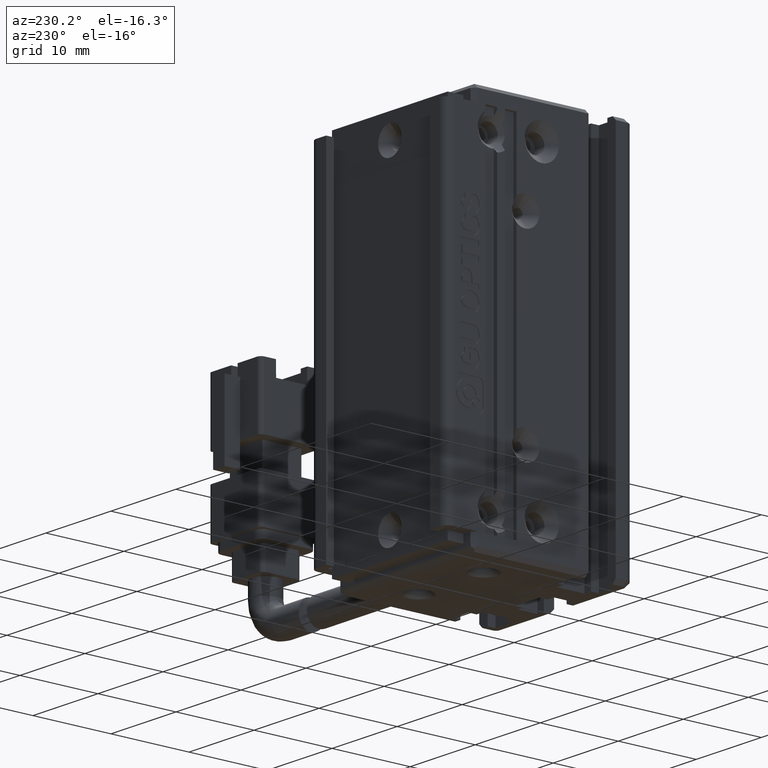
[diagram: clean part render]
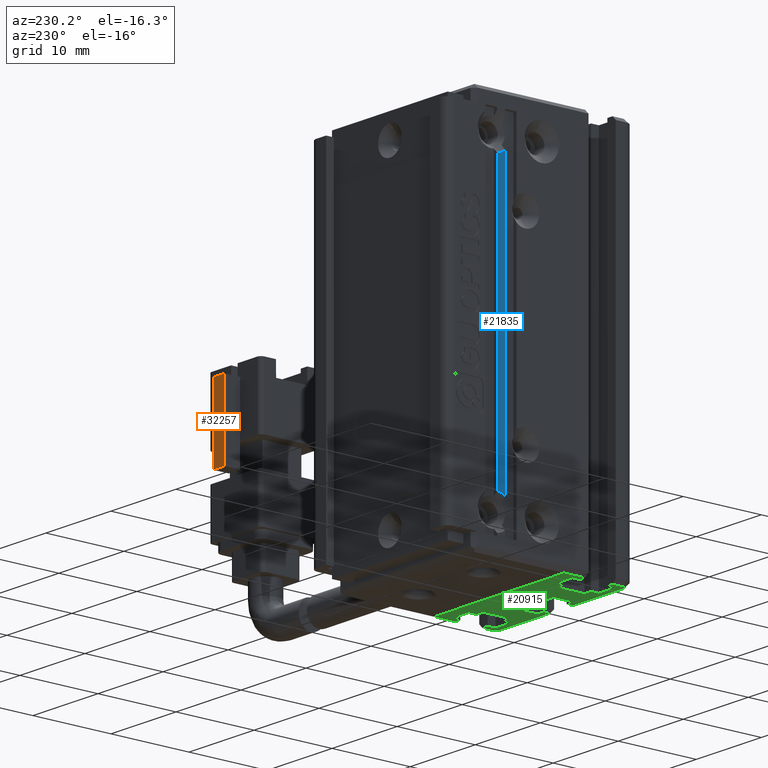
[diagram: same view with three faces highlighted in distinct colors, each labeled with its STEP entity id]
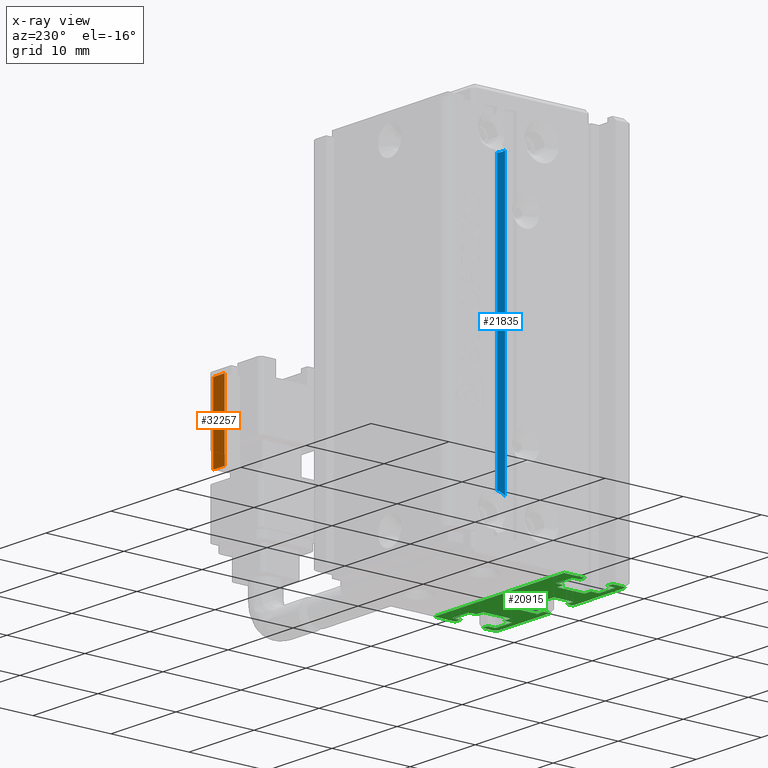
[diagram: x-ray of the same camera — body ghosted, the three highlighted faces saturated]
A machine part, auxiliary view with three faces highlighted in distinct colors.
The next image is the same camera in x-ray (body ghosted, the three faces saturated) — at least one of them is partly hidden behind the body in this view.
Their STEP definitions:

[orange] entity #32257 — the highlighted planar face has unit normal (0, -1, 0).
#828 = DIRECTION ( 'NONE',  ( -1.000000000000000000, -3.304235192336770000E-015, -8.579261317967046800E-031 ) ) ;
#1065 = PLANE ( 'NONE',  #9312 ) ;
#1249 = EDGE_CURVE ( 'NONE', #16711, #12448, #35735, .T. ) ;
#1794 = ORIENTED_EDGE ( 'NONE', *, *, #1249, .T. ) ;
#3335 = LINE ( 'NONE', #10336, #17324 ) ;
#3916 = DIRECTION ( 'NONE',  ( 3.304235192336770000E-015, -1.000000000000000000, 2.381136223867111700E-016 ) ) ;
#5257 = CARTESIAN_POINT ( 'NONE',  ( 73.55037974683534700, 27.49073232304858600, -119.9500000000000000 ) ) ;
#6436 = FACE_OUTER_BOUND ( 'NONE', #24013, .T. ) ;
#8269 = DIRECTION ( 'NONE',  ( 1.041348031262155300E-030, -5.551115123125780200E-017, -1.000000000000000000 ) ) ;
#9312 = AXIS2_PLACEMENT_3D ( 'NONE', #12774, #3916, #16016 ) ;
#10336 = CARTESIAN_POINT ( 'NONE',  ( 73.55037974683534700, 27.49073232304858600, -110.4500000000000000 ) ) ;
#10622 = CARTESIAN_POINT ( 'NONE',  ( 73.55037974683534700, 27.49073232304858600, -110.4500000000000000 ) ) ;
#12317 = VECTOR ( 'NONE', #828, 1000.000000000000000 ) ;
#12448 = VERTEX_POINT ( 'NONE', #31370 ) ;
#12774 = CARTESIAN_POINT ( 'NONE',  ( 73.55037974683534700, 27.49073232304858600, -110.4500000000000000 ) ) ;
#13887 = ORIENTED_EDGE ( 'NONE', *, *, #29961, .F. ) ;
#15738 = VERTEX_POINT ( 'NONE', #10622 ) ;
#15973 = ORIENTED_EDGE ( 'NONE', *, *, #17709, .F. ) ;
#16016 = DIRECTION ( 'NONE',  ( -1.644709542661664400E-030, 2.381136223867111700E-016, 1.000000000000000000 ) ) ;
#16711 = VERTEX_POINT ( 'NONE', #27559 ) ;
#17324 = VECTOR ( 'NONE', #22243, 1000.000000000000000 ) ;
#17522 = DIRECTION ( 'NONE',  ( -1.000000000000000000, -3.304235192336770000E-015, -8.579261317967046800E-031 ) ) ;
#17709 = EDGE_CURVE ( 'NONE', #16711, #15738, #20290, .T. ) ;
#18643 = VECTOR ( 'NONE', #17522, 1000.000000000000000 ) ;
#20290 = LINE ( 'NONE', #28194, #12317 ) ;
#22243 = DIRECTION ( 'NONE',  ( 1.041348031262155300E-030, -5.551115123125780200E-017, -1.000000000000000000 ) ) ;
#24013 = EDGE_LOOP ( 'NONE', ( #25532, #13887, #15973, #1794 ) ) ;
#24678 = EDGE_CURVE ( 'NONE', #12448, #25483, #26605, .T. ) ;
#25483 = VERTEX_POINT ( 'NONE', #28174 ) ;
#25532 = ORIENTED_EDGE ( 'NONE', *, *, #24678, .T. ) ;
#26605 = LINE ( 'NONE', #5257, #18643 ) ;
#27559 = CARTESIAN_POINT ( 'NONE',  ( 75.30037974683534700, 27.49073232304859000, -110.4500000000000000 ) ) ;
#27738 = VECTOR ( 'NONE', #8269, 1000.000000000000000 ) ;
#28174 = CARTESIAN_POINT ( 'NONE',  ( 73.55037974683534700, 27.49073232304858600, -119.9500000000000000 ) ) ;
#28194 = CARTESIAN_POINT ( 'NONE',  ( 73.55037974683534700, 27.49073232304858600, -110.4500000000000000 ) ) ;
#29079 = CARTESIAN_POINT ( 'NONE',  ( 75.30037974683534700, 27.49073232304859000, -110.4500000000000000 ) ) ;
#29961 = EDGE_CURVE ( 'NONE', #15738, #25483, #3335, .T. ) ;
#31370 = CARTESIAN_POINT ( 'NONE',  ( 75.30037974683534700, 27.49073232304859000, -119.9500000000000000 ) ) ;
#32257 = ADVANCED_FACE ( 'NONE', ( #6436 ), #1065, .F. ) ;
#35735 = LINE ( 'NONE', #29079, #27738 ) ;

[blue] entity #21835 — the highlighted planar face has unit normal (-1, 0, 0).
#83 = DIRECTION ( 'NONE',  ( 0.0000000000000000000, 3.154042683580097500E-015, 1.000000000000000000 ) ) ;
#1394 = CARTESIAN_POINT ( 'NONE',  ( 30.42537974683542100, 7.083797468354437600, -91.00000000000000000 ) ) ;
#1775 = DIRECTION ( 'NONE',  ( 0.0000000000000000000, 0.0000000000000000000, 1.000000000000000000 ) ) ;
#3462 = EDGE_CURVE ( 'NONE', #8829, #8794, #18912, .T. ) ;
#4968 = EDGE_CURVE ( 'NONE', #8794, #15138, #26114, .T. ) ;
#8430 = EDGE_CURVE ( 'NONE', #37164, #8829, #27811, .T. ) ;
#8794 = VERTEX_POINT ( 'NONE', #33349 ) ;
#8829 = VERTEX_POINT ( 'NONE', #15272 ) ;
#11407 = ORIENTED_EDGE ( 'NONE', *, *, #8430, .T. ) ;
#13464 = CIRCLE ( 'NONE', #37040, 2.200000000022572800 ) ;
#13498 = DIRECTION ( 'NONE',  ( -1.000000000000000000, 0.0000000000000000000, 0.0000000000000000000 ) ) ;
#13850 = AXIS2_PLACEMENT_3D ( 'NONE', #32718, #18048, #83 ) ;
#14972 = DIRECTION ( 'NONE',  ( 1.000000000000000000, -0.0000000000000000000, -0.0000000000000000000 ) ) ;
#15138 = VERTEX_POINT ( 'NONE', #21763 ) ;
#15272 = CARTESIAN_POINT ( 'NONE',  ( 30.42537974685563600, 27.49073232304837300, -97.27482393494297200 ) ) ;
#16836 = DIRECTION ( 'NONE',  ( 0.0000000000000000000, -0.0000000000000000000, -1.000000000000000000 ) ) ;
#18048 = DIRECTION ( 'NONE',  ( 1.000000000000000000, -0.0000000000000000000, -0.0000000000000000000 ) ) ;
#18912 = CIRCLE ( 'NONE', #13850, 2.200000000009833200 ) ;
#19145 = VECTOR ( 'NONE', #16836, 1000.000000000000000 ) ;
#19279 = PLANE ( 'NONE',  #34093 ) ;
#19865 = VECTOR ( 'NONE', #1775, 1000.000000000000000 ) ;
#21763 = CARTESIAN_POINT ( 'NONE',  ( 30.42537974685621900, 28.49073232304836600, -132.3205505282067500 ) ) ;
#21835 = ADVANCED_FACE ( 'NONE', ( #37790 ), #19279, .T. ) ;
#22604 = CARTESIAN_POINT ( 'NONE',  ( 30.42537974683542100, 28.49073232304836600, -91.00000000000000000 ) ) ;
#23977 = CARTESIAN_POINT ( 'NONE',  ( 30.42537974684588400, 27.49073232304837300, -132.7251760650292200 ) ) ;
#25224 = EDGE_CURVE ( 'NONE', #15138, #37164, #13464, .T. ) ;
#26114 = LINE ( 'NONE', #22604, #19145 ) ;
#27723 = ORIENTED_EDGE ( 'NONE', *, *, #3462, .T. ) ;
#27811 = LINE ( 'NONE', #34172, #19865 ) ;
#29162 = EDGE_LOOP ( 'NONE', ( #27723, #31428, #37746, #11407 ) ) ;
#31428 = ORIENTED_EDGE ( 'NONE', *, *, #4968, .T. ) ;
#32428 = CARTESIAN_POINT ( 'NONE',  ( 30.42537974685634300, 28.79073232304836700, -134.5000000000000000 ) ) ;
#32718 = CARTESIAN_POINT ( 'NONE',  ( 30.42537974685634300, 28.79073232304837000, -95.50000000000001400 ) ) ;
#33349 = CARTESIAN_POINT ( 'NONE',  ( 30.42537974684588400, 28.49073232304836600, -97.67944947179083200 ) ) ;
#34093 = AXIS2_PLACEMENT_3D ( 'NONE', #1394, #13498, #38174 ) ;
#34172 = CARTESIAN_POINT ( 'NONE',  ( 30.42537974683542100, 27.49073232304837300, -91.00000000000000000 ) ) ;
#35699 = DIRECTION ( 'NONE',  ( 0.0000000000000000000, -1.577021341780916500E-015, 1.000000000000000000 ) ) ;
#37040 = AXIS2_PLACEMENT_3D ( 'NONE', #32428, #14972, #35699 ) ;
#37164 = VERTEX_POINT ( 'NONE', #23977 ) ;
#37746 = ORIENTED_EDGE ( 'NONE', *, *, #25224, .T. ) ;
#37790 = FACE_OUTER_BOUND ( 'NONE', #29162, .T. ) ;
#38174 = DIRECTION ( 'NONE',  ( 0.0000000000000000000, 0.0000000000000000000, 1.000000000000000000 ) ) ;

[green] entity #20915 — the highlighted planar face has unit normal (-0, 0, 1).
#33 = CARTESIAN_POINT ( 'NONE',  ( 50.92537974683541800, 7.083797468354437600, -139.0000000000000000 ) ) ;
#153 = VECTOR ( 'NONE', #6653, 1000.000000000000000 ) ;
#384 = LINE ( 'NONE', #6993, #8709 ) ;
#411 = ORIENTED_EDGE ( 'NONE', *, *, #35120, .T. ) ;
#736 = ORIENTED_EDGE ( 'NONE', *, *, #32164, .T. ) ;
#856 = CARTESIAN_POINT ( 'NONE',  ( 31.72537974683539000, 7.083797468354469600, -139.0000000000000000 ) ) ;
#992 = VERTEX_POINT ( 'NONE', #21769 ) ;
#1178 = VERTEX_POINT ( 'NONE', #16347 ) ;
#1208 = EDGE_CURVE ( 'NONE', #9322, #22573, #17433, .T. ) ;
#1235 = CARTESIAN_POINT ( 'NONE',  ( 50.92537974683541800, 16.79073232304837000, -139.0000000000000000 ) ) ;
#1330 = CARTESIAN_POINT ( 'NONE',  ( 34.22537974683542900, 12.29073232304837200, -139.0000000000000000 ) ) ;
#1701 = EDGE_CURVE ( 'NONE', #12330, #38287, #1907, .T. ) ;
#1709 = DIRECTION ( 'NONE',  ( -1.000000000000000000, -0.0000000000000000000, -0.0000000000000000000 ) ) ;
#1728 = CARTESIAN_POINT ( 'NONE',  ( 40.92537974683542500, 13.29073232304837200, -139.0000000000000000 ) ) ;
#1907 = LINE ( 'NONE', #13123, #16829 ) ;
#2000 = ORIENTED_EDGE ( 'NONE', *, *, #15696, .T. ) ;
#2163 = EDGE_CURVE ( 'NONE', #14493, #5362, #36046, .T. ) ;
#2205 = VERTEX_POINT ( 'NONE', #18506 ) ;
#2322 = VERTEX_POINT ( 'NONE', #20516 ) ;
#2325 = CARTESIAN_POINT ( 'NONE',  ( 30.92537974683541800, 19.49073232304837000, -139.0000000000000000 ) ) ;
#2407 = EDGE_CURVE ( 'NONE', #37473, #6656, #17210, .T. ) ;
#2457 = CARTESIAN_POINT ( 'NONE',  ( 31.72537974683542600, 13.29073232304837200, -139.0000000000000000 ) ) ;
#2641 = DIRECTION ( 'NONE',  ( 1.000000000000000000, 0.0000000000000000000, 0.0000000000000000000 ) ) ;
#2711 = EDGE_CURVE ( 'NONE', #37631, #19708, #7340, .T. ) ;
#2860 = VECTOR ( 'NONE', #23421, 1000.000000000000000 ) ;
#2920 = VERTEX_POINT ( 'NONE', #38331 ) ;
#3140 = LINE ( 'NONE', #10501, #29801 ) ;
#3434 = CARTESIAN_POINT ( 'NONE',  ( 43.67537974683542500, 12.29073232304837200, -139.0000000000000000 ) ) ;
#3455 = VECTOR ( 'NONE', #19400, 1000.000000000000000 ) ;
#3484 = DIRECTION ( 'NONE',  ( 1.000000000000000000, 0.0000000000000000000, 0.0000000000000000000 ) ) ;
#3529 = ORIENTED_EDGE ( 'NONE', *, *, #31596, .F. ) ;
#3552 = DIRECTION ( 'NONE',  ( 1.000000000000000000, -2.602085213965209900E-015, 0.0000000000000000000 ) ) ;
#3648 = EDGE_CURVE ( 'NONE', #2322, #19419, #19365, .T. ) ;
#3691 = CARTESIAN_POINT ( 'NONE',  ( 46.62537974683541400, 7.083797468354437600, -139.0000000000000000 ) ) ;
#3759 = AXIS2_PLACEMENT_3D ( 'NONE', #11140, #35097, #29338 ) ;
#3820 = VERTEX_POINT ( 'NONE', #18727 ) ;
#3845 = CARTESIAN_POINT ( 'NONE',  ( 34.22537974683547200, 7.083797468354414500, -139.0000000000000000 ) ) ;
#3932 = LINE ( 'NONE', #856, #28686 ) ;
#3968 = CARTESIAN_POINT ( 'NONE',  ( 40.92537974683542500, 12.29073232304837200, -139.0000000000000000 ) ) ;
#4122 = ORIENTED_EDGE ( 'NONE', *, *, #17931, .F. ) ;
#4151 = DIRECTION ( 'NONE',  ( -0.0000000000000000000, -1.000000000000000000, 0.0000000000000000000 ) ) ;
#4461 = EDGE_CURVE ( 'NONE', #38287, #18095, #10752, .T. ) ;
#4499 = CARTESIAN_POINT ( 'NONE',  ( 47.62537974683541400, 13.29073232304837200, -139.0000000000000000 ) ) ;
#4600 = CARTESIAN_POINT ( 'NONE',  ( 47.62537974683543500, 7.083797468354461600, -139.0000000000000000 ) ) ;
#4658 = CARTESIAN_POINT ( 'NONE',  ( 43.67537974683542500, 14.79073232304837000, -139.0000000000000000 ) ) ;
#4837 = DIRECTION ( 'NONE',  ( 1.000000000000000000, 0.0000000000000000000, 0.0000000000000000000 ) ) ;
#5340 = VERTEX_POINT ( 'NONE', #14057 ) ;
#5362 = VERTEX_POINT ( 'NONE', #20109 ) ;
#5531 = CARTESIAN_POINT ( 'NONE',  ( 30.92537974683542100, 13.29073232304837200, -139.0000000000000000 ) ) ;
#5552 = CARTESIAN_POINT ( 'NONE',  ( 38.17537974683542500, 7.083797468354437600, -139.0000000000000000 ) ) ;
#5673 = EDGE_CURVE ( 'NONE', #6656, #29591, #18703, .T. ) ;
#6390 = CIRCLE ( 'NONE', #3759, 0.4999999999286026700 ) ;
#6653 = DIRECTION ( 'NONE',  ( 1.000000000000000000, 0.0000000000000000000, 0.0000000000000000000 ) ) ;
#6656 = VERTEX_POINT ( 'NONE', #9457 ) ;
#6660 = DIRECTION ( 'NONE',  ( 0.0000000000000000000, 1.000000000000000000, -0.0000000000000000000 ) ) ;
#6774 = VECTOR ( 'NONE', #25992, 1000.000000000000000 ) ;
#6979 = EDGE_CURVE ( 'NONE', #9322, #14493, #27842, .T. ) ;
#6993 = CARTESIAN_POINT ( 'NONE',  ( 34.22537974683541500, 7.083797468354461600, -139.0000000000000000 ) ) ;
#7001 = CARTESIAN_POINT ( 'NONE',  ( 42.67537974683542500, 7.083797468354437600, -139.0000000000000000 ) ) ;
#7105 = DIRECTION ( 'NONE',  ( -0.0000000000000000000, -1.000000000000000000, 0.0000000000000000000 ) ) ;
#7212 = EDGE_CURVE ( 'NONE', #37473, #30181, #30213, .T. ) ;
#7304 = VERTEX_POINT ( 'NONE', #3434 ) ;
#7340 = LINE ( 'NONE', #21656, #19999 ) ;
#7443 = VECTOR ( 'NONE', #19622, 1000.000000000000000 ) ;
#7454 = VERTEX_POINT ( 'NONE', #8600 ) ;
#7532 = DIRECTION ( 'NONE',  ( -0.0000000000000000000, -1.000000000000000000, 0.0000000000000000000 ) ) ;
#7552 = CARTESIAN_POINT ( 'NONE',  ( 40.92537974683542500, 11.49073232304837200, -139.0000000000000000 ) ) ;
#7745 = CARTESIAN_POINT ( 'NONE',  ( 47.62537974683541400, 12.29073232304837200, -139.0000000000000000 ) ) ;
#7790 = VECTOR ( 'NONE', #11162, 1000.000000000000000 ) ;
#7820 = VECTOR ( 'NONE', #12644, 1000.000000000000000 ) ;
#8024 = VECTOR ( 'NONE', #7532, 1000.000000000000000 ) ;
#8266 = VECTOR ( 'NONE', #33943, 1000.000000000000000 ) ;
#8318 = LINE ( 'NONE', #35706, #29881 ) ;
#8344 = VECTOR ( 'NONE', #28601, 1000.000000000000000 ) ;
#8578 = VECTOR ( 'NONE', #23371, 1000.000000000000000 ) ;
#8600 = CARTESIAN_POINT ( 'NONE',  ( 50.12537974683542800, 16.79073232304837000, -139.0000000000000000 ) ) ;
#8709 = VECTOR ( 'NONE', #28412, 1000.000000000000000 ) ;
#8855 = VECTOR ( 'NONE', #30638, 1000.000000000000000 ) ;
#9037 = VERTEX_POINT ( 'NONE', #31368 ) ;
#9200 = EDGE_CURVE ( 'NONE', #7454, #31636, #31413, .T. ) ;
#9265 = VECTOR ( 'NONE', #11589, 1000.000000000000000 ) ;
#9322 = VERTEX_POINT ( 'NONE', #30165 ) ;
#9457 = CARTESIAN_POINT ( 'NONE',  ( 39.17537974683542500, 14.79073232304837000, -139.0000000000000000 ) ) ;
#9557 = ORIENTED_EDGE ( 'NONE', *, *, #19267, .F. ) ;
#9727 = DIRECTION ( 'NONE',  ( 0.0000000000000000000, -1.000000000000000000, 0.0000000000000000000 ) ) ;
#9745 = EDGE_CURVE ( 'NONE', #17477, #2322, #32710, .T. ) ;
#9850 = CARTESIAN_POINT ( 'NONE',  ( 50.42537974683541800, 11.99073232304837200, -139.0000000000577500 ) ) ;
#10103 = VECTOR ( 'NONE', #4151, 1000.000000000000000 ) ;
#10244 = VECTOR ( 'NONE', #25023, 1000.000000000000000 ) ;
#10311 = VECTOR ( 'NONE', #34942, 1000.000000000000000 ) ;
#10425 = CARTESIAN_POINT ( 'NONE',  ( 40.92537974683542500, 12.29073232304837200, -139.0000000000000000 ) ) ;
#10501 = CARTESIAN_POINT ( 'NONE',  ( 39.17537974683542500, 7.083797468354437600, -139.0000000000000000 ) ) ;
#10521 = ORIENTED_EDGE ( 'NONE', *, *, #23698, .F. ) ;
#10594 = ORIENTED_EDGE ( 'NONE', *, *, #5673, .T. ) ;
#10661 = DIRECTION ( 'NONE',  ( 0.0000000000000000000, 1.000000000000000000, -0.0000000000000000000 ) ) ;
#10699 = CARTESIAN_POINT ( 'NONE',  ( 40.92537974683542500, 7.083797468354437600, -139.0000000000000000 ) ) ;
#10752 = LINE ( 'NONE', #10425, #35115 ) ;
#10888 = VERTEX_POINT ( 'NONE', #33253 ) ;
#10931 = LINE ( 'NONE', #3968, #33871 ) ;
#11055 = ORIENTED_EDGE ( 'NONE', *, *, #30823, .T. ) ;
#11117 = DIRECTION ( 'NONE',  ( -0.0000000000000000000, 0.0000000000000000000, 1.000000000000000000 ) ) ;
#11140 = CARTESIAN_POINT ( 'NONE',  ( 31.42537974683542900, 11.99073232304837200, -139.0000000000009100 ) ) ;
#11162 = DIRECTION ( 'NONE',  ( 3.469446951953607900E-015, -1.000000000000000000, 0.0000000000000000000 ) ) ;
#11198 = EDGE_CURVE ( 'NONE', #5340, #27265, #6390, .T. ) ;
#11513 = VERTEX_POINT ( 'NONE', #24415 ) ;
#11589 = DIRECTION ( 'NONE',  ( -0.0000000000000000000, -1.000000000000000000, 0.0000000000000000000 ) ) ;
#11687 = EDGE_CURVE ( 'NONE', #22537, #3820, #31581, .T. ) ;
#11712 = DIRECTION ( 'NONE',  ( 0.0000000000000000000, 1.000000000000000000, -0.0000000000000000000 ) ) ;
#11715 = EDGE_CURVE ( 'NONE', #38227, #5362, #32048, .T. ) ;
#11719 = DIRECTION ( 'NONE',  ( 1.000000000000000000, 0.0000000000000000000, 0.0000000000000000000 ) ) ;
#11785 = LINE ( 'NONE', #13409, #8024 ) ;
#11950 = ORIENTED_EDGE ( 'NONE', *, *, #18685, .F. ) ;
#12217 = CARTESIAN_POINT ( 'NONE',  ( 40.92537974683542500, 12.29073232304837200, -139.0000000000000000 ) ) ;
#12330 = VERTEX_POINT ( 'NONE', #23316 ) ;
#12499 = CARTESIAN_POINT ( 'NONE',  ( 47.62537974683541400, 16.79073232304837000, -139.0000000000000000 ) ) ;
#12644 = DIRECTION ( 'NONE',  ( 0.0000000000000000000, 1.000000000000000000, 0.0000000000000000000 ) ) ;
#12672 = CARTESIAN_POINT ( 'NONE',  ( 40.92537974683542500, 15.79073232304837000, -139.0000000000000000 ) ) ;
#12702 = LINE ( 'NONE', #30596, #153 ) ;
#13106 = CARTESIAN_POINT ( 'NONE',  ( 40.92537974683542500, 12.29073232304837200, -139.0000000000000000 ) ) ;
#13122 = CARTESIAN_POINT ( 'NONE',  ( 50.12537974683544900, 7.083797468354469600, -139.0000000000000000 ) ) ;
#13123 = CARTESIAN_POINT ( 'NONE',  ( 50.12537974683540700, 7.083797468354405600, -139.0000000000000000 ) ) ;
#13163 = ORIENTED_EDGE ( 'NONE', *, *, #25197, .T. ) ;
#13409 = CARTESIAN_POINT ( 'NONE',  ( 30.92537974683542100, 7.083797468354437600, -139.0000000000000000 ) ) ;
#13548 = VECTOR ( 'NONE', #36211, 1000.000000000000000 ) ;
#13566 = DIRECTION ( 'NONE',  ( 1.000000000000000000, 0.0000000000000000000, 0.0000000000000000000 ) ) ;
#13663 = ORIENTED_EDGE ( 'NONE', *, *, #31688, .F. ) ;
#13862 = LINE ( 'NONE', #12217, #16193 ) ;
#13903 = LINE ( 'NONE', #16826, #34063 ) ;
#13917 = CARTESIAN_POINT ( 'NONE',  ( 42.67537974683542500, 12.29073232304837200, -139.0000000000000000 ) ) ;
#14049 = VECTOR ( 'NONE', #2641, 1000.000000000000000 ) ;
#14057 = CARTESIAN_POINT ( 'NONE',  ( 30.92537974683587300, 11.99073232304837000, -139.0000000000004500 ) ) ;
#14152 = LINE ( 'NONE', #19185, #34308 ) ;
#14158 = AXIS2_PLACEMENT_3D ( 'NONE', #10699, #11117, #13566 ) ;
#14180 = VERTEX_POINT ( 'NONE', #1330 ) ;
#14412 = VECTOR ( 'NONE', #35722, 1000.000000000000000 ) ;
#14458 = LINE ( 'NONE', #27779, #37464 ) ;
#14493 = VERTEX_POINT ( 'NONE', #35422 ) ;
#14578 = VECTOR ( 'NONE', #11712, 1000.000000000000000 ) ;
#14872 = EDGE_CURVE ( 'NONE', #24101, #7304, #14458, .T. ) ;
#15142 = VECTOR ( 'NONE', #3484, 1000.000000000000000 ) ;
#15282 = VERTEX_POINT ( 'NONE', #13917 ) ;
#15524 = EDGE_CURVE ( 'NONE', #3820, #10888, #18573, .T. ) ;
#15696 = EDGE_CURVE ( 'NONE', #14180, #20867, #384, .T. ) ;
#15729 = LINE ( 'NONE', #26587, #7790 ) ;
#15874 = LINE ( 'NONE', #5552, #2860 ) ;
#15977 = ORIENTED_EDGE ( 'NONE', *, *, #9745, .F. ) ;
#15988 = ORIENTED_EDGE ( 'NONE', *, *, #38321, .T. ) ;
#16193 = VECTOR ( 'NONE', #33035, 1000.000000000000000 ) ;
#16347 = CARTESIAN_POINT ( 'NONE',  ( 42.67537974683542500, 14.79073232304837000, -139.0000000000000000 ) ) ;
#16475 = CARTESIAN_POINT ( 'NONE',  ( 35.22537974683543600, 7.083797468354437600, -139.0000000000000000 ) ) ;
#16498 = LINE ( 'NONE', #23760, #8578 ) ;
#16509 = ORIENTED_EDGE ( 'NONE', *, *, #37399, .T. ) ;
#16706 = CARTESIAN_POINT ( 'NONE',  ( 47.62537974683537800, 7.083797468354414500, -139.0000000000000000 ) ) ;
#16826 = CARTESIAN_POINT ( 'NONE',  ( 40.92537974683542500, 19.49073232304837000, -139.0000000000000000 ) ) ;
#16829 = VECTOR ( 'NONE', #28426, 1000.000000000000000 ) ;
#17035 = LINE ( 'NONE', #36325, #15142 ) ;
#17148 = DIRECTION ( 'NONE',  ( -1.000000000000000000, 1.734723475976807100E-015, 0.0000000000000000000 ) ) ;
#17175 = EDGE_CURVE ( 'NONE', #27265, #21625, #17035, .T. ) ;
#17208 = ORIENTED_EDGE ( 'NONE', *, *, #15524, .F. ) ;
#17210 = LINE ( 'NONE', #29531, #9265 ) ;
#17433 = LINE ( 'NONE', #16475, #3455 ) ;
#17477 = VERTEX_POINT ( 'NONE', #4499 ) ;
#17704 = FACE_OUTER_BOUND ( 'NONE', #23407, .T. ) ;
#17867 = VERTEX_POINT ( 'NONE', #21945 ) ;
#17875 = CARTESIAN_POINT ( 'NONE',  ( 42.67537974683542500, 11.49073232304837200, -139.0000000000000000 ) ) ;
#17889 = CARTESIAN_POINT ( 'NONE',  ( 31.72537974683542600, 17.79073232304837000, -139.0000000000000000 ) ) ;
#17931 = EDGE_CURVE ( 'NONE', #7304, #15282, #35330, .T. ) ;
#18095 = VERTEX_POINT ( 'NONE', #7745 ) ;
#18506 = CARTESIAN_POINT ( 'NONE',  ( 38.17537974683542500, 12.29073232304837200, -139.0000000000000000 ) ) ;
#18573 = CIRCLE ( 'NONE', #34656, 0.4999999999909122100 ) ;
#18685 = EDGE_CURVE ( 'NONE', #19034, #992, #23369, .T. ) ;
#18703 = LINE ( 'NONE', #24242, #13548 ) ;
#18727 = CARTESIAN_POINT ( 'NONE',  ( 50.42537974683541800, 11.49073232307724800, -139.0000000000288800 ) ) ;
#18962 = ORIENTED_EDGE ( 'NONE', *, *, #32864, .F. ) ;
#19034 = VERTEX_POINT ( 'NONE', #12499 ) ;
#19070 = ORIENTED_EDGE ( 'NONE', *, *, #11198, .F. ) ;
#19185 = CARTESIAN_POINT ( 'NONE',  ( 50.92537974683541100, 7.083797468354437600, -139.0000000000000000 ) ) ;
#19267 = EDGE_CURVE ( 'NONE', #1178, #24101, #25630, .T. ) ;
#19365 = LINE ( 'NONE', #3691, #30585 ) ;
#19400 = DIRECTION ( 'NONE',  ( -0.0000000000000000000, -1.000000000000000000, 0.0000000000000000000 ) ) ;
#19415 = DIRECTION ( 'NONE',  ( 0.0000000000000000000, 1.000000000000000000, 0.0000000000000000000 ) ) ;
#19419 = VERTEX_POINT ( 'NONE', #20351 ) ;
#19602 = ORIENTED_EDGE ( 'NONE', *, *, #17175, .F. ) ;
#19622 = DIRECTION ( 'NONE',  ( -3.469446951953607900E-015, 1.000000000000000000, 0.0000000000000000000 ) ) ;
#19708 = VERTEX_POINT ( 'NONE', #35113 ) ;
#19999 = VECTOR ( 'NONE', #30692, 1000.000000000000000 ) ;
#20109 = CARTESIAN_POINT ( 'NONE',  ( 34.22537974683542900, 17.79073232304837000, -139.0000000000000000 ) ) ;
#20166 = CARTESIAN_POINT ( 'NONE',  ( 40.92537974683543900, 16.79073232304836000, -139.0000000000000000 ) ) ;
#20182 = ORIENTED_EDGE ( 'NONE', *, *, #6979, .T. ) ;
#20351 = CARTESIAN_POINT ( 'NONE',  ( 46.62537974683541400, 16.79073232304837400, -139.0000000000000000 ) ) ;
#20516 = CARTESIAN_POINT ( 'NONE',  ( 46.62537974683541400, 13.29073232304837200, -139.0000000000000000 ) ) ;
#20517 = CARTESIAN_POINT ( 'NONE',  ( 40.92537974683542500, 16.79073232304837000, -139.0000000000000000 ) ) ;
#20867 = VERTEX_POINT ( 'NONE', #28751 ) ;
#20915 = ADVANCED_FACE ( 'NONE', ( #17704 ), #22975, .F. ) ;
#21058 = ORIENTED_EDGE ( 'NONE', *, *, #24226, .F. ) ;
#21323 = ORIENTED_EDGE ( 'NONE', *, *, #3648, .F. ) ;
#21625 = VERTEX_POINT ( 'NONE', #25015 ) ;
#21656 = CARTESIAN_POINT ( 'NONE',  ( 30.92537974683541800, 7.083797468354437600, -139.0000000000000000 ) ) ;
#21696 = EDGE_CURVE ( 'NONE', #35888, #19708, #34476, .T. ) ;
#21769 = CARTESIAN_POINT ( 'NONE',  ( 47.62537974683541400, 17.79073232304837400, -139.0000000000000000 ) ) ;
#21828 = EDGE_CURVE ( 'NONE', #21625, #9037, #3140, .T. ) ;
#21899 = DIRECTION ( 'NONE',  ( -1.000000000000000000, -0.0000000000000000000, 0.0000000000000000000 ) ) ;
#21945 = CARTESIAN_POINT ( 'NONE',  ( 31.72537974683542600, 12.29073232304837200, -139.0000000000000000 ) ) ;
#21984 = DIRECTION ( 'NONE',  ( -1.000000000000000000, -0.0000000000000000000, -0.0000000000000000000 ) ) ;
#22064 = ORIENTED_EDGE ( 'NONE', *, *, #4461, .F. ) ;
#22270 = ORIENTED_EDGE ( 'NONE', *, *, #2407, .T. ) ;
#22348 = ORIENTED_EDGE ( 'NONE', *, *, #14872, .F. ) ;
#22537 = VERTEX_POINT ( 'NONE', #17875 ) ;
#22573 = VERTEX_POINT ( 'NONE', #27164 ) ;
#22628 = VECTOR ( 'NONE', #21899, 1000.000000000000000 ) ;
#22975 = PLANE ( 'NONE',  #14158 ) ;
#23316 = CARTESIAN_POINT ( 'NONE',  ( 50.12537974683542800, 13.29073232304837200, -139.0000000000000000 ) ) ;
#23369 = LINE ( 'NONE', #16706, #10311 ) ;
#23371 = DIRECTION ( 'NONE',  ( 1.000000000000000000, 0.0000000000000000000, 0.0000000000000000000 ) ) ;
#23407 = EDGE_LOOP ( 'NONE', ( #34016, #736, #4122, #22348, #9557, #18962, #35333, #22270, #10594, #21058, #11055, #27296, #19602, #19070, #35910, #15988, #411, #3529, #2000, #38557, #27812, #20182, #35856, #33717, #34459, #32845, #35267, #13163, #38282, #24354, #16509, #27068, #11950, #28755, #21323, #15977, #13663, #22064, #24319, #33275, #10521, #17208 ) ) ;
#23421 = DIRECTION ( 'NONE',  ( 0.0000000000000000000, 1.000000000000000000, -0.0000000000000000000 ) ) ;
#23698 = EDGE_CURVE ( 'NONE', #10888, #11513, #27234, .T. ) ;
#23760 = CARTESIAN_POINT ( 'NONE',  ( 40.92537974683542500, 13.29073232304837200, -139.0000000000000000 ) ) ;
#24101 = VERTEX_POINT ( 'NONE', #4658 ) ;
#24226 = EDGE_CURVE ( 'NONE', #2205, #29591, #15874, .T. ) ;
#24242 = CARTESIAN_POINT ( 'NONE',  ( 40.92537974683542500, 14.79073232304837000, -139.0000000000000000 ) ) ;
#24319 = ORIENTED_EDGE ( 'NONE', *, *, #1701, .F. ) ;
#24354 = ORIENTED_EDGE ( 'NONE', *, *, #9200, .F. ) ;
#24415 = CARTESIAN_POINT ( 'NONE',  ( 50.92537974683541800, 13.29073232304837200, -139.0000000000000000 ) ) ;
#24988 = VECTOR ( 'NONE', #4837, 1000.000000000000000 ) ;
#24997 = EDGE_CURVE ( 'NONE', #11513, #12330, #30348, .T. ) ;
#25015 = CARTESIAN_POINT ( 'NONE',  ( 39.17537974683542500, 11.49073232304837300, -139.0000000000000000 ) ) ;
#25023 = DIRECTION ( 'NONE',  ( -3.469446951953610200E-015, 1.000000000000000000, 0.0000000000000000000 ) ) ;
#25197 = EDGE_CURVE ( 'NONE', #37631, #37214, #13903, .T. ) ;
#25630 = LINE ( 'NONE', #31730, #28927 ) ;
#25768 = CARTESIAN_POINT ( 'NONE',  ( 38.17537974683542500, 14.79073232304837000, -139.0000000000000000 ) ) ;
#25992 = DIRECTION ( 'NONE',  ( 1.000000000000000000, 0.0000000000000000000, 0.0000000000000000000 ) ) ;
#26152 = LINE ( 'NONE', #13122, #10244 ) ;
#26587 = CARTESIAN_POINT ( 'NONE',  ( 31.72537974683544000, 7.083797468354405600, -139.0000000000000000 ) ) ;
#26769 = EDGE_CURVE ( 'NONE', #27576, #5340, #11785, .T. ) ;
#26934 = LINE ( 'NONE', #7001, #10103 ) ;
#27068 = ORIENTED_EDGE ( 'NONE', *, *, #36736, .F. ) ;
#27164 = CARTESIAN_POINT ( 'NONE',  ( 35.22537974683543600, 13.29073232304837000, -139.0000000000000000 ) ) ;
#27234 = LINE ( 'NONE', #33, #14578 ) ;
#27265 = VERTEX_POINT ( 'NONE', #27644 ) ;
#27296 = ORIENTED_EDGE ( 'NONE', *, *, #21828, .F. ) ;
#27576 = VERTEX_POINT ( 'NONE', #5531 ) ;
#27597 = DIRECTION ( 'NONE',  ( 1.000000000000000000, 0.0000000000000000000, 0.0000000000000000000 ) ) ;
#27644 = CARTESIAN_POINT ( 'NONE',  ( 31.42537974683542900, 11.49073232304881900, -139.0000000000004500 ) ) ;
#27779 = CARTESIAN_POINT ( 'NONE',  ( 43.67537974683542500, 7.083797468354437600, -139.0000000000000000 ) ) ;
#27783 = DIRECTION ( 'NONE',  ( 0.0000000000000000000, -1.734723476013086000E-015, 1.000000000000000000 ) ) ;
#27786 = CARTESIAN_POINT ( 'NONE',  ( 40.92537974683542500, 16.79073232304837400, -139.0000000000000000 ) ) ;
#27812 = ORIENTED_EDGE ( 'NONE', *, *, #1208, .F. ) ;
#27842 = LINE ( 'NONE', #20166, #30164 ) ;
#27870 = DIRECTION ( 'NONE',  ( -3.469446951953635100E-015, -1.000000000000000000, 0.0000000000000000000 ) ) ;
#28080 = EDGE_CURVE ( 'NONE', #20867, #22573, #8318, .T. ) ;
#28412 = DIRECTION ( 'NONE',  ( 3.469446951953607900E-015, 1.000000000000000000, 0.0000000000000000000 ) ) ;
#28426 = DIRECTION ( 'NONE',  ( -3.469446951953607900E-015, -1.000000000000000000, 0.0000000000000000000 ) ) ;
#28601 = DIRECTION ( 'NONE',  ( -1.000000000000000000, -0.0000000000000000000, 0.0000000000000000000 ) ) ;
#28686 = VECTOR ( 'NONE', #27870, 1000.000000000000000 ) ;
#28751 = CARTESIAN_POINT ( 'NONE',  ( 34.22537974683543600, 13.29073232304837200, -139.0000000000000000 ) ) ;
#28755 = ORIENTED_EDGE ( 'NONE', *, *, #31997, .F. ) ;
#28927 = VECTOR ( 'NONE', #28976, 1000.000000000000000 ) ;
#28976 = DIRECTION ( 'NONE',  ( 1.000000000000000000, 0.0000000000000000000, 0.0000000000000000000 ) ) ;
#28983 = EDGE_CURVE ( 'NONE', #31636, #37214, #14152, .T. ) ;
#29325 = CARTESIAN_POINT ( 'NONE',  ( 50.12537974683542800, 12.29073232304837200, -139.0000000000000000 ) ) ;
#29338 = DIRECTION ( 'NONE',  ( 0.0000000000000000000, -1.000000000000000000, 0.0000000000000000000 ) ) ;
#29531 = CARTESIAN_POINT ( 'NONE',  ( 39.17537974683542500, 7.083797468354437600, -139.0000000000000000 ) ) ;
#29591 = VERTEX_POINT ( 'NONE', #25768 ) ;
#29801 = VECTOR ( 'NONE', #19415, 1000.000000000000000 ) ;
#29881 = VECTOR ( 'NONE', #3552, 1000.000000000000000 ) ;
#30164 = VECTOR ( 'NONE', #17148, 1000.000000000000000 ) ;
#30165 = CARTESIAN_POINT ( 'NONE',  ( 35.22537974683543600, 16.79073232304837400, -139.0000000000000000 ) ) ;
#30181 = VERTEX_POINT ( 'NONE', #35211 ) ;
#30213 = LINE ( 'NONE', #12672, #37281 ) ;
#30338 = CARTESIAN_POINT ( 'NONE',  ( 31.72537974683542600, 16.79073232304837400, -139.0000000000000000 ) ) ;
#30348 = LINE ( 'NONE', #1728, #8344 ) ;
#30585 = VECTOR ( 'NONE', #6660, 1000.000000000000000 ) ;
#30596 = CARTESIAN_POINT ( 'NONE',  ( 40.92537974683542500, 17.79073232304837400, -139.0000000000000000 ) ) ;
#30638 = DIRECTION ( 'NONE',  ( -3.469446951953635100E-015, 1.000000000000000000, 0.0000000000000000000 ) ) ;
#30692 = DIRECTION ( 'NONE',  ( -0.0000000000000000000, -1.000000000000000000, 0.0000000000000000000 ) ) ;
#30823 = EDGE_CURVE ( 'NONE', #2205, #9037, #13862, .T. ) ;
#31368 = CARTESIAN_POINT ( 'NONE',  ( 39.17537974683542500, 12.29073232304837200, -139.0000000000000000 ) ) ;
#31413 = LINE ( 'NONE', #20517, #14049 ) ;
#31581 = LINE ( 'NONE', #7552, #6774 ) ;
#31596 = EDGE_CURVE ( 'NONE', #14180, #17867, #10931, .T. ) ;
#31636 = VERTEX_POINT ( 'NONE', #1235 ) ;
#31688 = EDGE_CURVE ( 'NONE', #18095, #17477, #35563, .T. ) ;
#31730 = CARTESIAN_POINT ( 'NONE',  ( 40.92537974683542500, 14.79073232304837000, -139.0000000000000000 ) ) ;
#31760 = VECTOR ( 'NONE', #32510, 1000.000000000000000 ) ;
#31997 = EDGE_CURVE ( 'NONE', #19419, #19034, #38838, .T. ) ;
#32048 = LINE ( 'NONE', #34644, #24988 ) ;
#32164 = EDGE_CURVE ( 'NONE', #22537, #15282, #32663, .T. ) ;
#32510 = DIRECTION ( 'NONE',  ( -1.000000000000000000, -2.602085213965209900E-015, 0.0000000000000000000 ) ) ;
#32579 = CARTESIAN_POINT ( 'NONE',  ( 40.92537974683543900, 16.79073232304838100, -139.0000000000000000 ) ) ;
#32641 = CARTESIAN_POINT ( 'NONE',  ( 40.92537974683541100, 13.29073232304835500, -139.0000000000000000 ) ) ;
#32663 = LINE ( 'NONE', #33331, #7820 ) ;
#32710 = LINE ( 'NONE', #32641, #31760 ) ;
#32845 = ORIENTED_EDGE ( 'NONE', *, *, #21696, .T. ) ;
#32864 = EDGE_CURVE ( 'NONE', #30181, #1178, #26934, .T. ) ;
#33035 = DIRECTION ( 'NONE',  ( 1.000000000000000000, 0.0000000000000000000, 0.0000000000000000000 ) ) ;
#33044 = CARTESIAN_POINT ( 'NONE',  ( 50.92537974683541800, 19.49073232304837000, -139.0000000000000000 ) ) ;
#33253 = CARTESIAN_POINT ( 'NONE',  ( 50.92537974680654100, 11.99073232304837000, -139.0000000000288800 ) ) ;
#33275 = ORIENTED_EDGE ( 'NONE', *, *, #24997, .F. ) ;
#33331 = CARTESIAN_POINT ( 'NONE',  ( 42.67537974683542500, 7.083797468354437600, -139.0000000000000000 ) ) ;
#33717 = ORIENTED_EDGE ( 'NONE', *, *, #11715, .F. ) ;
#33797 = EDGE_CURVE ( 'NONE', #38227, #35888, #3932, .T. ) ;
#33871 = VECTOR ( 'NONE', #21984, 1000.000000000000000 ) ;
#33943 = DIRECTION ( 'NONE',  ( -1.000000000000000000, -0.0000000000000000000, 0.0000000000000000000 ) ) ;
#34016 = ORIENTED_EDGE ( 'NONE', *, *, #11687, .F. ) ;
#34063 = VECTOR ( 'NONE', #11719, 1000.000000000000000 ) ;
#34308 = VECTOR ( 'NONE', #10661, 1000.000000000000000 ) ;
#34459 = ORIENTED_EDGE ( 'NONE', *, *, #33797, .T. ) ;
#34476 = LINE ( 'NONE', #27786, #8266 ) ;
#34644 = CARTESIAN_POINT ( 'NONE',  ( 40.92537974683542500, 17.79073232304837000, -139.0000000000000000 ) ) ;
#34656 = AXIS2_PLACEMENT_3D ( 'NONE', #9850, #27783, #9727 ) ;
#34942 = DIRECTION ( 'NONE',  ( 3.469446951953610200E-015, 1.000000000000000000, 0.0000000000000000000 ) ) ;
#35097 = DIRECTION ( 'NONE',  ( 0.0000000000000000000, -1.734723476219780400E-015, 1.000000000000000000 ) ) ;
#35113 = CARTESIAN_POINT ( 'NONE',  ( 30.92537974683541400, 16.79073232304837400, -139.0000000000000000 ) ) ;
#35115 = VECTOR ( 'NONE', #1709, 1000.000000000000000 ) ;
#35120 = EDGE_CURVE ( 'NONE', #37649, #17867, #15729, .T. ) ;
#35211 = CARTESIAN_POINT ( 'NONE',  ( 42.67537974683542500, 15.79073232304837000, -139.0000000000000000 ) ) ;
#35267 = ORIENTED_EDGE ( 'NONE', *, *, #2711, .F. ) ;
#35330 = LINE ( 'NONE', #13106, #22628 ) ;
#35333 = ORIENTED_EDGE ( 'NONE', *, *, #7212, .F. ) ;
#35422 = CARTESIAN_POINT ( 'NONE',  ( 34.22537974683543600, 16.79073232304837400, -139.0000000000000000 ) ) ;
#35563 = LINE ( 'NONE', #4600, #7443 ) ;
#35706 = CARTESIAN_POINT ( 'NONE',  ( 40.92537974683543900, 13.29073232304835500, -139.0000000000000000 ) ) ;
#35722 = DIRECTION ( 'NONE',  ( 1.000000000000000000, -1.734723475976807100E-015, 0.0000000000000000000 ) ) ;
#35856 = ORIENTED_EDGE ( 'NONE', *, *, #2163, .T. ) ;
#35888 = VERTEX_POINT ( 'NONE', #30338 ) ;
#35910 = ORIENTED_EDGE ( 'NONE', *, *, #26769, .F. ) ;
#36046 = LINE ( 'NONE', #3845, #8855 ) ;
#36211 = DIRECTION ( 'NONE',  ( -1.000000000000000000, -0.0000000000000000000, 0.0000000000000000000 ) ) ;
#36325 = CARTESIAN_POINT ( 'NONE',  ( 40.92537974683542500, 11.49073232304836300, -139.0000000000000000 ) ) ;
#36736 = EDGE_CURVE ( 'NONE', #992, #2920, #12702, .T. ) ;
#37214 = VERTEX_POINT ( 'NONE', #33044 ) ;
#37262 = CARTESIAN_POINT ( 'NONE',  ( 39.17537974683542500, 15.79073232304837000, -139.0000000000000000 ) ) ;
#37281 = VECTOR ( 'NONE', #27597, 1000.000000000000000 ) ;
#37399 = EDGE_CURVE ( 'NONE', #7454, #2920, #26152, .T. ) ;
#37464 = VECTOR ( 'NONE', #7105, 1000.000000000000000 ) ;
#37473 = VERTEX_POINT ( 'NONE', #37262 ) ;
#37631 = VERTEX_POINT ( 'NONE', #2325 ) ;
#37649 = VERTEX_POINT ( 'NONE', #2457 ) ;
#38227 = VERTEX_POINT ( 'NONE', #17889 ) ;
#38282 = ORIENTED_EDGE ( 'NONE', *, *, #28983, .F. ) ;
#38287 = VERTEX_POINT ( 'NONE', #29325 ) ;
#38321 = EDGE_CURVE ( 'NONE', #27576, #37649, #16498, .T. ) ;
#38331 = CARTESIAN_POINT ( 'NONE',  ( 50.12537974683542100, 17.79073232304837400, -139.0000000000000000 ) ) ;
#38557 = ORIENTED_EDGE ( 'NONE', *, *, #28080, .T. ) ;
#38838 = LINE ( 'NONE', #32579, #14412 ) ;